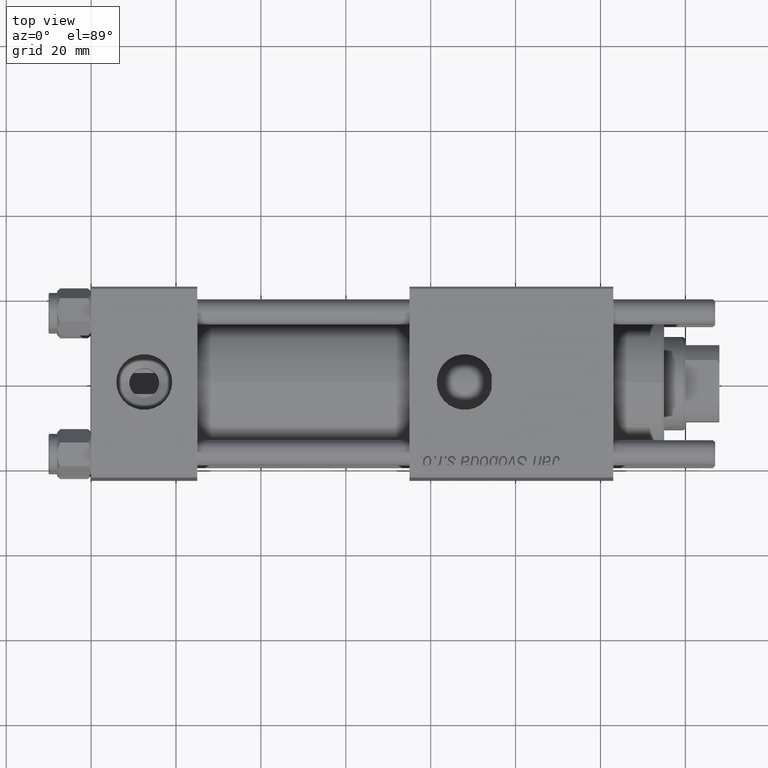
[diagram: clean part render]
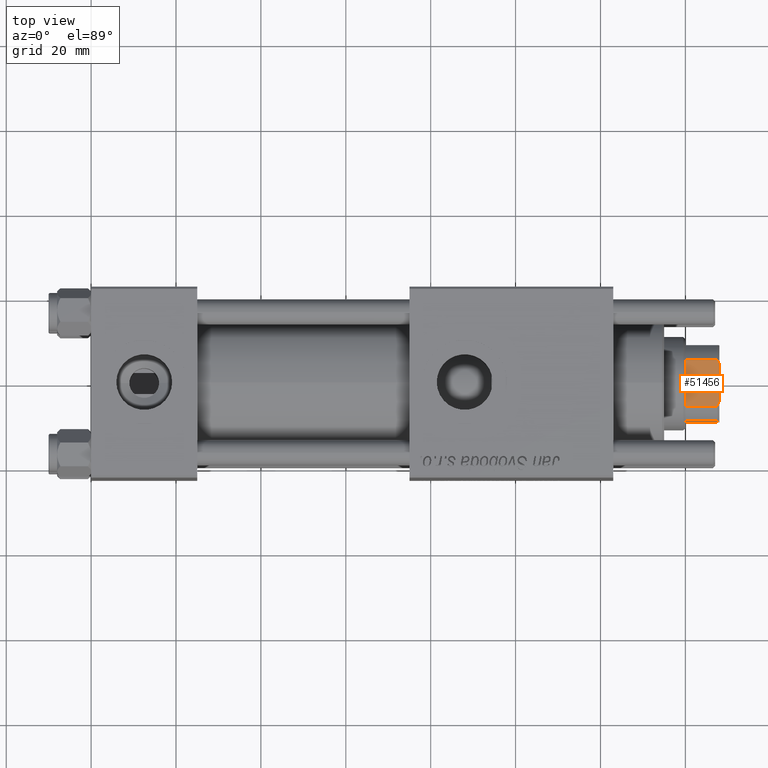
[diagram: same view with one face highlighted and labeled with its STEP entity id]
A machine part, top view. The second image highlights one B-rep face of the part: STEP entity #51456.
In plain terms, the highlighted planar face has unit normal (0, 0, -1).
Its self-contained STEP definition (entity closure, byte-faithful):
#2555 = ORIENTED_EDGE ( 'NONE', *, *, #55594, .F. ) ;
#4314 = CARTESIAN_POINT ( 'NONE',  ( -5.408326913195988794, -8.999999999999998224, -0.001000000000001000089 ) ) ;
#4610 = VECTOR ( 'NONE', #44219, 1000.000000000000000 ) ;
#5100 = CARTESIAN_POINT ( 'NONE',  ( -9.000000000000001776, -9.000000000000001776, 123.0000000000000000 ) ) ;
#5663 = CARTESIAN_POINT ( 'NONE',  ( -9.000000000000001776, -9.000000000000001776, 123.0000000000000000 ) ) ;
#7778 = ORIENTED_EDGE ( 'NONE', *, *, #38106, .T. ) ;
#7937 = LINE ( 'NONE', #17174, #4610 ) ;
#8881 = CARTESIAN_POINT ( 'NONE',  ( -4.714305797500247586, -9.000000000000001776, 122.8450817439748448 ) ) ;
#9859 = DIRECTION ( 'NONE',  ( 0.000000000000000000, -0.000000000000000000, 1.000000000000000000 ) ) ;
#10403 = LINE ( 'NONE', #5663, #31551 ) ;
#11675 = CARTESIAN_POINT ( 'NONE',  ( 4.358898943540667759, -9.000000000000001776, 123.0000000000000000 ) ) ;
#13641 = VERTEX_POINT ( 'NONE', #38357 ) ;
#16436 = VERTEX_POINT ( 'NONE', #49671 ) ;
#17174 = CARTESIAN_POINT ( 'NONE',  ( -9.000000000000001776, -9.000000000000001776, 115.0000000000000000 ) ) ;
#18999 = CARTESIAN_POINT ( 'NONE',  ( -5.408326913195988794, -8.999999999999998224, 122.5000000000000000 ) ) ;
#19660 = DIRECTION ( 'NONE',  ( -0.000000000000000000, -0.000000000000000000, 1.000000000000000000 ) ) ;
#21309 = DIRECTION ( 'NONE',  ( -0.000000000000000000, -0.000000000000000000, 1.000000000000000000 ) ) ;
#21944 = AXIS2_PLACEMENT_3D ( 'NONE', #5100, #23265, #9859 ) ;
#21986 = B_SPLINE_CURVE_WITH_KNOTS ( 'NONE', 3,
 ( #22288, #8881, #46053, #37129 ),
 .UNSPECIFIED., .F., .F.,
 ( 4, 4 ),
 ( 0.000000000000000000, 0.001162453897363199080 ),
 .UNSPECIFIED. ) ;
#22200 = LINE ( 'NONE', #4314, #45534 ) ;
#22288 = CARTESIAN_POINT ( 'NONE',  ( -4.358898943540667759, -9.000000000000001776, 123.0000000000000000 ) ) ;
#23265 = DIRECTION ( 'NONE',  ( 0.000000000000000000, 1.000000000000000000, 0.000000000000000000 ) ) ;
#23826 = DIRECTION ( 'NONE',  ( 1.000000000000000000, 0.000000000000000000, 0.000000000000000000 ) ) ;
#25671 = CARTESIAN_POINT ( 'NONE',  ( 5.063687070142448121, -8.999999999999998224, 122.6775166608139216 ) ) ;
#26667 = VERTEX_POINT ( 'NONE', #18999 ) ;
#27721 = PLANE ( 'NONE',  #21944 ) ;
#27750 = EDGE_CURVE ( 'NONE', #28655, #13641, #41971, .T. ) ;
#28655 = VERTEX_POINT ( 'NONE', #55466 ) ;
#31551 = VECTOR ( 'NONE', #23826, 1000.000000000000000 ) ;
#33164 = CARTESIAN_POINT ( 'NONE',  ( -4.358898943540667759, -9.000000000000001776, 123.0000000000000000 ) ) ;
#37129 = CARTESIAN_POINT ( 'NONE',  ( -5.408326913195988794, -8.999999999999998224, 122.5000000000000000 ) ) ;
#37223 = FACE_OUTER_BOUND ( 'NONE', #46961, .T. ) ;
#37397 = VERTEX_POINT ( 'NONE', #33164 ) ;
#38106 = EDGE_CURVE ( 'NONE', #37397, #26667, #21986, .T. ) ;
#38336 = EDGE_CURVE ( 'NONE', #45191, #28655, #7937, .T. ) ;
#38357 = CARTESIAN_POINT ( 'NONE',  ( 5.408326913195988794, -8.999999999999998224, 122.5000000000000000 ) ) ;
#38479 = ORIENTED_EDGE ( 'NONE', *, *, #42164, .F. ) ;
#38844 = EDGE_CURVE ( 'NONE', #13641, #16436, #45984, .T. ) ;
#39340 = CARTESIAN_POINT ( 'NONE',  ( 5.408326913195988794, -8.999999999999998224, 122.5000000000000000 ) ) ;
#40081 = CARTESIAN_POINT ( 'NONE',  ( -5.408326913195988794, -8.999999999999998224, 115.0000000000000284 ) ) ;
#41971 = LINE ( 'NONE', #52368, #47136 ) ;
#42164 = EDGE_CURVE ( 'NONE', #45191, #26667, #22200, .T. ) ;
#42849 = ORIENTED_EDGE ( 'NONE', *, *, #27750, .T. ) ;
#43472 = ORIENTED_EDGE ( 'NONE', *, *, #38336, .T. ) ;
#44219 = DIRECTION ( 'NONE',  ( 1.000000000000000000, 0.000000000000000000, 0.000000000000000000 ) ) ;
#45191 = VERTEX_POINT ( 'NONE', #40081 ) ;
#45534 = VECTOR ( 'NONE', #21309, 1000.000000000000000 ) ;
#45984 = B_SPLINE_CURVE_WITH_KNOTS ( 'NONE', 3,
 ( #39340, #25671, #52427, #11675 ),
 .UNSPECIFIED., .F., .F.,
 ( 4, 4 ),
 ( 0.000000000000000000, 0.001162453897363199080 ),
 .UNSPECIFIED. ) ;
#46053 = CARTESIAN_POINT ( 'NONE',  ( -5.063687070142449009, -9.000000000000001776, 122.6775166608139216 ) ) ;
#46961 = EDGE_LOOP ( 'NONE', ( #42849, #53888, #2555, #7778, #38479, #43472 ) ) ;
#47136 = VECTOR ( 'NONE', #19660, 1000.000000000000000 ) ;
#49671 = CARTESIAN_POINT ( 'NONE',  ( 4.358898943540667759, -9.000000000000001776, 123.0000000000000000 ) ) ;
#51456 = ADVANCED_FACE ( 'NONE', ( #37223 ), #27721, .F. ) ;
#52368 = CARTESIAN_POINT ( 'NONE',  ( 5.408326913195988794, -8.999999999999998224, -0.001000000000001000089 ) ) ;
#52427 = CARTESIAN_POINT ( 'NONE',  ( 4.714305797500245809, -9.000000000000001776, 122.8450817439748448 ) ) ;
#53888 = ORIENTED_EDGE ( 'NONE', *, *, #38844, .T. ) ;
#55466 = CARTESIAN_POINT ( 'NONE',  ( 5.408326913195988794, -8.999999999999998224, 115.0000000000000284 ) ) ;
#55594 = EDGE_CURVE ( 'NONE', #37397, #16436, #10403, .T. ) ;